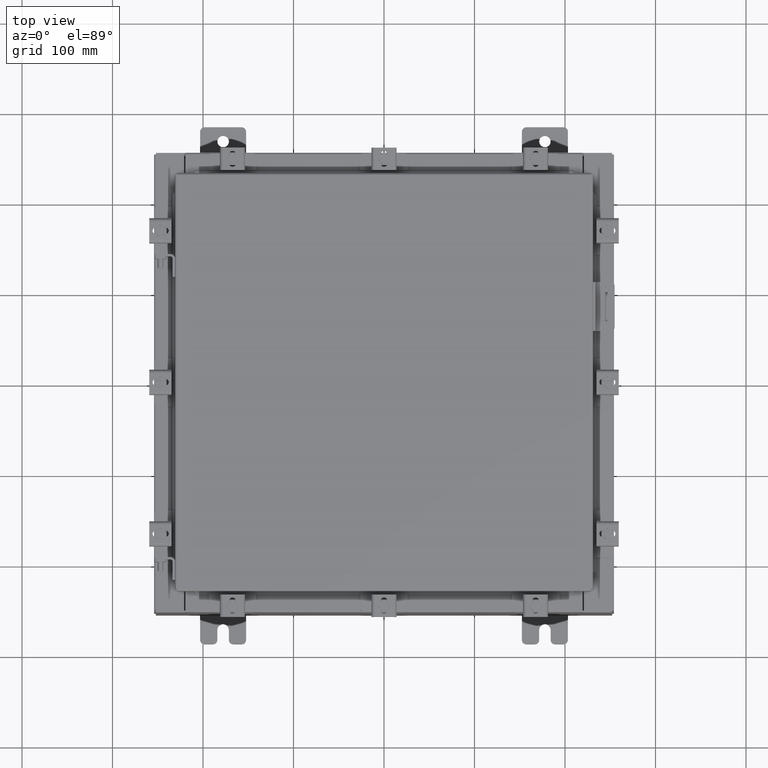
[diagram: clean part render]
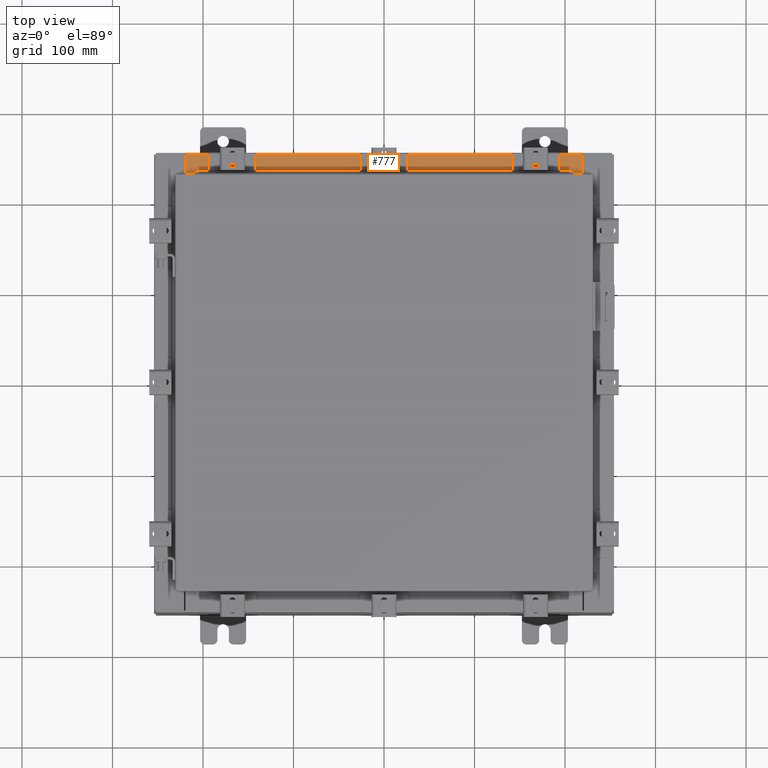
[diagram: same view with one face highlighted and labeled with its STEP entity id]
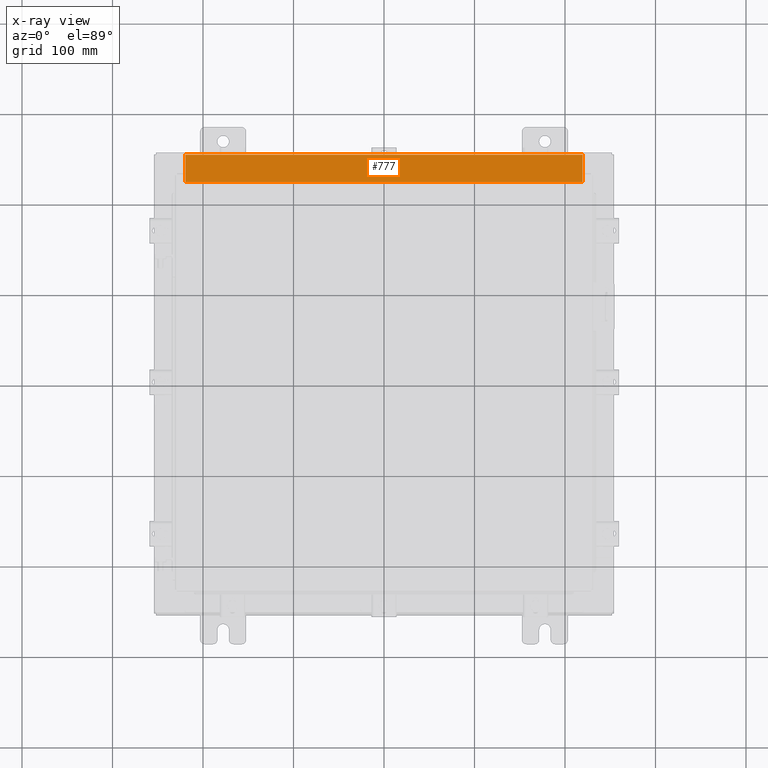
[diagram: x-ray of the same camera — body ghosted, the highlighted face saturated]
A machine part, top view. The second image highlights one B-rep face of the part: STEP entity #777.
The next image is the same camera in x-ray: the body ghosted, the highlighted face saturated — about 0% of this face is hidden behind the body in this view.
In plain terms, the highlighted planar face has unit normal (0, 0, 1).
Its self-contained STEP definition (entity closure, byte-faithful):
#476 = FACE_OUTER_BOUND ( 'NONE', #5142, .T. ) ;
#777 = ADVANCED_FACE ( 'NONE', ( #476 ), #7732, .T. ) ;
#1735 = DIRECTION ( 'NONE',  ( 0.0000000000000000000, -1.000000000000000000, 3.566381192773190000E-015 ) ) ;
#1882 = CARTESIAN_POINT ( 'NONE',  ( -8.637200000000000000, -0.08770000000000000000, 4.000000000000000000 ) ) ;
#1933 = LINE ( 'NONE', #4604, #5473 ) ;
#1953 = VECTOR ( 'NONE', #14585, 39.37007874015748100 ) ;
#2153 = LINE ( 'NONE', #18077, #15566 ) ;
#2677 = VERTEX_POINT ( 'NONE', #13806 ) ;
#4124 = CARTESIAN_POINT ( 'NONE',  ( -2.773851121247567100E-018, -0.08770000000000000000, 4.000000000000000900 ) ) ;
#4604 = CARTESIAN_POINT ( 'NONE',  ( 8.637200000000000000, -1.300299999999999800, 4.000000000000004400 ) ) ;
#4973 = VECTOR ( 'NONE', #21849, 39.37007874015748100 ) ;
#5024 = VERTEX_POINT ( 'NONE', #1882 ) ;
#5142 = EDGE_LOOP ( 'NONE', ( #12300, #10976, #17639, #16329 ) ) ;
#5473 = VECTOR ( 'NONE', #20242, 39.37007874015748100 ) ;
#6272 = VERTEX_POINT ( 'NONE', #13279 ) ;
#7732 = PLANE ( 'NONE',  #16981 ) ;
#8207 = CARTESIAN_POINT ( 'NONE',  ( -8.637200000000000000, -1.287299999999999200, 4.000000000000004400 ) ) ;
#10976 = ORIENTED_EDGE ( 'NONE', *, *, #19670, .F. ) ;
#11628 = EDGE_CURVE ( 'NONE', #2677, #5024, #15904, .T. ) ;
#12300 = ORIENTED_EDGE ( 'NONE', *, *, #16620, .F. ) ;
#13087 = EDGE_CURVE ( 'NONE', #2677, #6272, #1933, .T. ) ;
#13114 = VERTEX_POINT ( 'NONE', #8207 ) ;
#13279 = CARTESIAN_POINT ( 'NONE',  ( 8.637200000000000000, -1.287299999999999900, 4.000000000000004400 ) ) ;
#13806 = CARTESIAN_POINT ( 'NONE',  ( 8.637200000000000000, -0.08769999999999965300, 4.000000000000000000 ) ) ;
#14272 = LINE ( 'NONE', #20088, #4973 ) ;
#14585 = DIRECTION ( 'NONE',  ( -1.000000000000000000, 3.162886113166609200E-017, -1.128005754888089100E-031 ) ) ;
#15566 = VECTOR ( 'NONE', #16323, 39.37007874015748100 ) ;
#15904 = LINE ( 'NONE', #4124, #1953 ) ;
#16323 = DIRECTION ( 'NONE',  ( -0.0000000000000000000, 1.000000000000000000, -3.566381192773190000E-015 ) ) ;
#16329 = ORIENTED_EDGE ( 'NONE', *, *, #11628, .T. ) ;
#16620 = EDGE_CURVE ( 'NONE', #13114, #5024, #2153, .T. ) ;
#16981 = AXIS2_PLACEMENT_3D ( 'NONE', #20922, #17008, #1735 ) ;
#17008 = DIRECTION ( 'NONE',  ( 0.0000000000000000000, 3.566381192773190000E-015, 1.000000000000000000 ) ) ;
#17639 = ORIENTED_EDGE ( 'NONE', *, *, #13087, .F. ) ;
#18077 = CARTESIAN_POINT ( 'NONE',  ( -8.637200000000000000, -0.07469999999999973900, 4.000000000000000000 ) ) ;
#19670 = EDGE_CURVE ( 'NONE', #6272, #13114, #14272, .T. ) ;
#20088 = CARTESIAN_POINT ( 'NONE',  ( 8.637200000000000000, -1.287299999999999900, 4.000000000000003600 ) ) ;
#20242 = DIRECTION ( 'NONE',  ( -0.0000000000000000000, -1.000000000000000000, 3.566381192773190000E-015 ) ) ;
#20922 = CARTESIAN_POINT ( 'NONE',  ( 0.0000000000000000000, 1.425992975200418500E-014, 4.000000000000000000 ) ) ;
#21849 = DIRECTION ( 'NONE',  ( -1.000000000000000000, 0.0000000000000000000, 0.0000000000000000000 ) ) ;